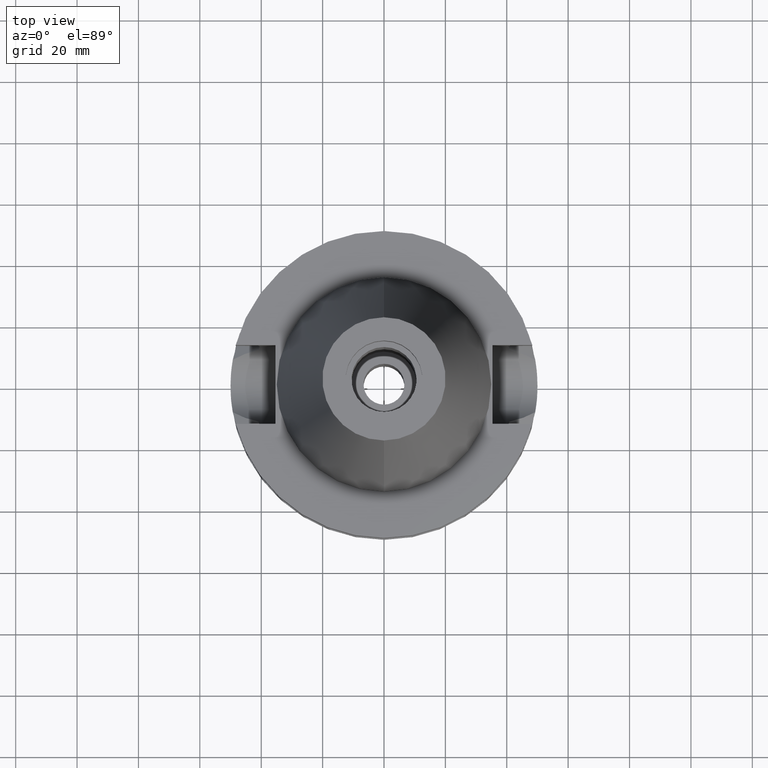
[diagram: clean part render]
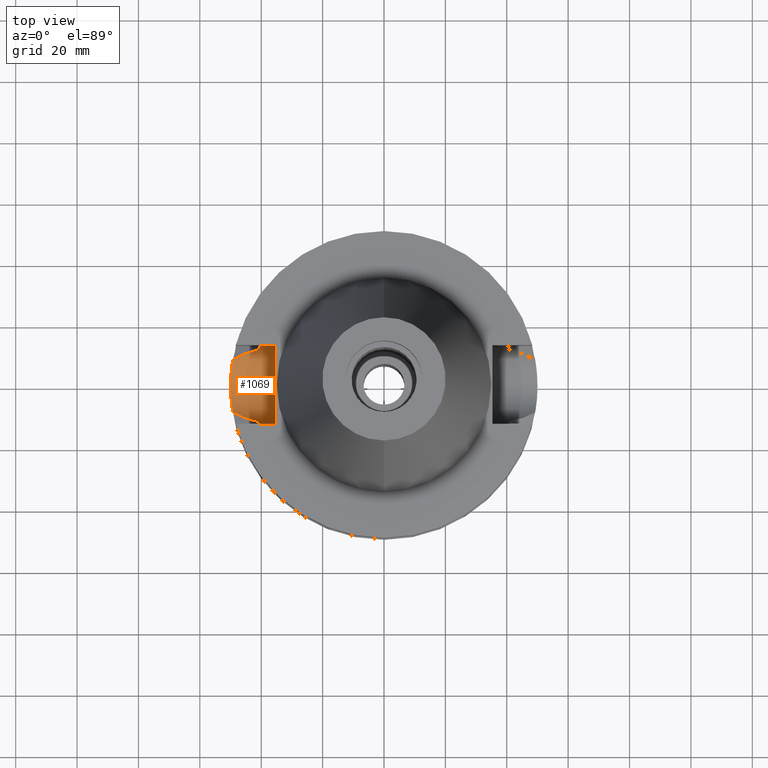
[diagram: same view with one face highlighted and labeled with its STEP entity id]
A machine part, top view. The second image highlights one B-rep face of the part: STEP entity #1069.
In plain terms, the highlighted cylindrical surface (partial cylindrical patch) has radius 12.85 mm, axis along (-1, 0, 0).
Its self-contained STEP definition (entity closure, byte-faithful):
#5 = B_SPLINE_CURVE_WITH_KNOTS ( 'NONE', 3,
 ( #2106, #2936, #953, #739, #3244, #2629, #2325, #1279, #1857, #709, #113, #2072, #1561, #2051, #187, #1544, #3173, #2647, #2091, #2969, #2681, #463, #758, #130, #3482, #1506, #1245, #3197, #1027, #997, #686, #1806, #1010, #1293, #1840, #425, #410, #972, #478, #2919, #1785, #1523, #2953, #170, #3213, #1263, #2403, #2386, #3519, #1576, #445, #2900, #1227, #2343, #3464, #153, #3501, #2364, #724, #1823, #2668, #1630 ),
 .UNSPECIFIED., .F., .F.,
 ( 4, 2, 2, 1, 1, 1, 1, 2, 2, 2, 2, 1, 1, 1, 2, 2, 2, 2, 1, 1, 1, 2, 2, 2, 2, 1, 1, 1, 1, 2, 2, 2, 2, 1, 1, 1, 1, 2, 2, 4 ),
 ( 0.0000000000000000000, 0.06250000000002720046, 0.09375000000004060641, 0.1093750000000471706, 0.1171875000000507233, 0.1210937500000529160, 0.1230468750000535960, 0.1240234375000534434, 0.1250000000000532907, 0.1875000000000558442, 0.2187500000000571210, 0.2343750000000574540, 0.2421875000000575651, 0.2460937500000575928, 0.2480468750000577038, 0.2500000000000578426, 0.3750000000000550671, 0.4375000000000537903, 0.4687500000000530687, 0.4843750000000526801, 0.4921875000000525691, 0.4960937500000524580, 0.5000000000000524025, 0.6250000000000494049, 0.6875000000000478506, 0.7187500000000470735, 0.7343750000000468514, 0.7421875000000467404, 0.7460937500000466294, 0.7480468750000465183, 0.7500000000000465183, 0.8125000000000550671, 0.8437500000000590639, 0.8593750000000615064, 0.8671875000000625056, 0.8710937500000629496, 0.8730468750000628386, 0.8740234375000623945, 0.8750000000000619504, 1.000000000000000000 ),
 .UNSPECIFIED. ) ;
#57 = CARTESIAN_POINT ( 'NONE',  ( -43.96066217039383162, -10.89329387998074417, -28.01500673712165224 ) ) ;
#62 = ORIENTED_EDGE ( 'NONE', *, *, #669, .T. ) ;
#113 = CARTESIAN_POINT ( 'NONE',  ( -49.55502993616662621, 6.655769661060365827, -32.14196323990747572 ) ) ;
#116 = CARTESIAN_POINT ( 'NONE',  ( -40.66327695313978552, -12.35977177933932225, -24.67238797837626052 ) ) ;
#130 = CARTESIAN_POINT ( 'NONE',  ( -49.79292594743412081, 4.545608915704280051, -33.16915556117016450 ) ) ;
#153 = CARTESIAN_POINT ( 'NONE',  ( -49.55886472127158981, -6.627183405197360599, -32.15923396748425489 ) ) ;
#170 = CARTESIAN_POINT ( 'NONE',  ( -49.79691665736708472, -4.501773781330188129, -33.18568231505851429 ) ) ;
#173 = CARTESIAN_POINT ( 'NONE',  ( -40.85052569294000335, 11.72538061688000077, -26.40718074535000426 ) ) ;
#183 = EDGE_CURVE ( 'NONE', #1925, #506, #2313, .T. ) ;
#187 = CARTESIAN_POINT ( 'NONE',  ( -49.64903245748666194, 5.923660221371612522, -32.55987247643395932 ) ) ;
#203 = CARTESIAN_POINT ( 'NONE',  ( -40.51083188481999997, -12.84999999999999964, -21.14999999999999858 ) ) ;
#207 = ORIENTED_EDGE ( 'NONE', *, *, #1636, .T. ) ;
#233 = CARTESIAN_POINT ( 'NONE',  ( -46.87933154419976489, 9.797331766449092427, -29.51662777444188279 ) ) ;
#265 = CARTESIAN_POINT ( 'NONE',  ( -45.33301839841863767, -10.38273113347296750, -28.72111586116416149 ) ) ;
#410 = CARTESIAN_POINT ( 'NONE',  ( -49.98153239810446280, -1.536309942625931457, -33.93135900371919433 ) ) ;
#415 = ORIENTED_EDGE ( 'NONE', *, *, #1445, .F. ) ;
#425 = CARTESIAN_POINT ( 'NONE',  ( -49.99934971134001671, -0.7780250444521822351, -33.99782700923925205 ) ) ;
#445 = CARTESIAN_POINT ( 'NONE',  ( -49.64375670555305931, -5.959977035680236845, -32.53601313160945097 ) ) ;
#458 = VERTEX_POINT ( 'NONE', #2635 ) ;
#463 = CARTESIAN_POINT ( 'NONE',  ( -49.79012209384632826, 4.576194112956198268, -33.15754248286818040 ) ) ;
#476 = CARTESIAN_POINT ( 'NONE',  ( -40.58662608485431633, 12.60878154790536598, -23.62927549513685221 ) ) ;
#478 = CARTESIAN_POINT ( 'NONE',  ( -49.90703590771476428, -3.062680104367267120, -33.63596624757198583 ) ) ;
#506 = VERTEX_POINT ( 'NONE', #1017 ) ;
#522 = CARTESIAN_POINT ( 'NONE',  ( -44.03024366512767784, 10.84224009945842404, -28.05050205276977238 ) ) ;
#528 = CARTESIAN_POINT ( 'NONE',  ( -40.59736864107516396, 12.57412283048225099, -23.79851909554432510 ) ) ;
#537 = CARTESIAN_POINT ( 'NONE',  ( -41.70827910381556336, 11.52618588157454305, -26.85145576678792523 ) ) ;
#538 = CARTESIAN_POINT ( 'NONE',  ( -45.90779893620076990, -10.16179369247718789, -29.01674352405570190 ) ) ;
#664 = CARTESIAN_POINT ( 'NONE',  ( -40.68244601107633684, -12.29666625011165415, -24.88710380518764254 ) ) ;
#669 = EDGE_CURVE ( 'NONE', #1669, #3183, #1752, .T. ) ;
#686 = CARTESIAN_POINT ( 'NONE',  ( -49.99918498204764461, 0.2914842721637553313, -33.99728988284978470 ) ) ;
#709 = CARTESIAN_POINT ( 'NONE',  ( -49.55328023547026106, 6.668788011479066746, -32.13407698025481807 ) ) ;
#724 = CARTESIAN_POINT ( 'NONE',  ( -49.55423850347899162, -6.661675813678163749, -32.13838478412101551 ) ) ;
#739 = CARTESIAN_POINT ( 'NONE',  ( -49.45264547056832782, 7.378484259212972241, -31.67235839785335827 ) ) ;
#756 = CARTESIAN_POINT ( 'NONE',  ( -40.51083188481999997, 12.84999999999999964, -21.14999999999999858 ) ) ;
#758 = CARTESIAN_POINT ( 'NONE',  ( -49.79207077461393283, 4.554957529430036622, -33.16561446378952382 ) ) ;
#815 = DIRECTION ( 'NONE',  ( 0.0000000000000000000, -1.000000000000000000, 1.133982661338924476E-14 ) ) ;
#818 = CARTESIAN_POINT ( 'NONE',  ( -45.41127577505132962, 10.35317772131971736, -28.76145609637714529 ) ) ;
#835 = CARTESIAN_POINT ( 'NONE',  ( -40.85052569294000335, 11.72538061688000077, -26.40718074535000426 ) ) ;
#850 = CARTESIAN_POINT ( 'NONE',  ( -40.51083188481999997, 12.84999999999999964, -21.14999999999999858 ) ) ;
#852 = CARTESIAN_POINT ( 'NONE',  ( -45.12853649560214109, 10.45879550311683381, -28.61599840262626060 ) ) ;
#953 = CARTESIAN_POINT ( 'NONE',  ( -49.37893249968452380, 7.861649082284807299, -31.32227597798662444 ) ) ;
#970 = LINE ( 'NONE', #1762, #2643 ) ;
#972 = CARTESIAN_POINT ( 'NONE',  ( -49.92889851897205489, -2.680302569563122628, -33.72333287919454392 ) ) ;
#975 = CARTESIAN_POINT ( 'NONE',  ( -40.63719938804874943, -12.44499676301189162, -24.35261212848416079 ) ) ;
#997 = CARTESIAN_POINT ( 'NONE',  ( -49.99656748919156257, 0.6198751107744853162, -33.98745238095582977 ) ) ;
#1010 = CARTESIAN_POINT ( 'NONE',  ( -49.99987979864300769, 0.05796992310210238170, -33.99989036820486632 ) ) ;
#1017 = CARTESIAN_POINT ( 'NONE',  ( -40.85052569294000335, -11.72538061688000077, -26.40718074535000426 ) ) ;
#1027 = CARTESIAN_POINT ( 'NONE',  ( -49.99187212320673979, 0.9033269217188442113, -33.96962286853197810 ) ) ;
#1042 = CARTESIAN_POINT ( 'NONE',  ( -40.57496101843508995, 12.64633755876300647, -23.43369807928905146 ) ) ;
#1054 = CARTESIAN_POINT ( 'NONE',  ( -43.66119926238382476, 10.96116163400731480, -27.86025128949973251 ) ) ;
#1063 = CARTESIAN_POINT ( 'NONE',  ( -35.39999999999999858, 1.497743035356999952E-14, -21.14999999999999858 ) ) ;
#1064 = CARTESIAN_POINT ( 'NONE',  ( -35.39999999999999858, 1.497743035356999952E-14, -21.14999999999999858 ) ) ;
#1069 = ADVANCED_FACE ( 'NONE', ( #2721 ), #1330, .F. ) ;
#1088 = CARTESIAN_POINT ( 'NONE',  ( -45.40182280251446656, 10.35675051129136470, -28.75659340072050796 ) ) ;
#1189 = ORIENTED_EDGE ( 'NONE', *, *, #2063, .T. ) ;
#1212 = CARTESIAN_POINT ( 'NONE',  ( -42.49430284854111051, -11.34364881463865693, -27.25857827030939973 ) ) ;
#1227 = CARTESIAN_POINT ( 'NONE',  ( -49.59445580804545273, -6.356262091154828653, -32.31864549455592339 ) ) ;
#1230 = CARTESIAN_POINT ( 'NONE',  ( -40.60613670648186968, -12.54578755583301231, -23.92964714799551729 ) ) ;
#1245 = CARTESIAN_POINT ( 'NONE',  ( -49.96641370053900744, 1.854335668373697787, -33.87145058406015607 ) ) ;
#1263 = CARTESIAN_POINT ( 'NONE',  ( -49.79153138711314597, -4.560858291787058150, -33.16337717899408233 ) ) ;
#1279 = CARTESIAN_POINT ( 'NONE',  ( -49.54081522937529769, 6.760831090909845464, -32.07779346214266525 ) ) ;
#1293 = CARTESIAN_POINT ( 'NONE',  ( -49.99991319832173531, 0.01136593543690614383, -34.00001610124986229 ) ) ;
#1323 = CARTESIAN_POINT ( 'NONE',  ( -40.54025313608427439, 12.75731810731626759, -22.70684014861360467 ) ) ;
#1330 = CYLINDRICAL_SURFACE ( 'NONE', #1469, 12.85000000000000320 ) ;
#1358 = ORIENTED_EDGE ( 'NONE', *, *, #1805, .T. ) ;
#1383 = CARTESIAN_POINT ( 'NONE',  ( -48.15927974300257830, 9.189153146266678007, -30.17230613848506948 ) ) ;
#1445 = EDGE_CURVE ( 'NONE', #1642, #1579, #970, .T. ) ;
#1469 = AXIS2_PLACEMENT_3D ( 'NONE', #1063, #1897, #2752 ) ;
#1490 = CARTESIAN_POINT ( 'NONE',  ( -40.74530522851353709, -12.08734613714425876, -25.53455770065779618 ) ) ;
#1506 = CARTESIAN_POINT ( 'NONE',  ( -49.91494156087190248, 3.003678809712104769, -33.66822178038223257 ) ) ;
#1523 = CARTESIAN_POINT ( 'NONE',  ( -49.81887950449394964, -4.253215501433965429, -33.27643327980759835 ) ) ;
#1526 = CARTESIAN_POINT ( 'NONE',  ( -40.51083188482000708, -12.84999999999998543, -22.03308001794205140 ) ) ;
#1544 = CARTESIAN_POINT ( 'NONE',  ( -49.70819606445564887, 5.395925769115646808, -32.81381563558341696 ) ) ;
#1561 = CARTESIAN_POINT ( 'NONE',  ( -49.55660296224501593, 6.644051108357952096, -32.14905121250929199 ) ) ;
#1574 = CARTESIAN_POINT ( 'NONE',  ( -40.85052569294000335, 11.72538061688000077, -26.40718074535000426 ) ) ;
#1576 = CARTESIAN_POINT ( 'NONE',  ( -49.66444571838366073, -5.784797251189780276, -32.62588835529720654 ) ) ;
#1579 = VERTEX_POINT ( 'NONE', #203 ) ;
#1630 = CARTESIAN_POINT ( 'NONE',  ( -49.26250064874000145, -8.556052234130000045, -30.73730776426999967 ) ) ;
#1636 = EDGE_CURVE ( 'NONE', #2802, #1669, #3580, .T. ) ;
#1641 = CARTESIAN_POINT ( 'NONE',  ( -45.58130776639562498, -10.28866937313324925, -28.84884086776562029 ) ) ;
#1642 = VERTEX_POINT ( 'NONE', #2784 ) ;
#1658 = DIRECTION ( 'NONE',  ( 1.000000000000000000, 3.301887120261000215E-14, -2.711023109266999928E-14 ) ) ;
#1669 = VERTEX_POINT ( 'NONE', #173 ) ;
#1752 = B_SPLINE_CURVE_WITH_KNOTS ( 'NONE', 3,
 ( #835, #537, #1932, #1054, #522, #2151, #2462, #852, #3063, #3045, #3579, #1088, #818, #233, #1383, #2183 ),
 .UNSPECIFIED., .F., .F.,
 ( 4, 2, 2, 1, 1, 1, 1, 2, 2, 4 ),
 ( 0.0000000000000000000, 0.2500000000000300870, 0.3750000000000449085, 0.4375000000000516254, 0.4687500000000549560, 0.4843750000000566769, 0.4921875000000576206, 0.4960937500000583422, 0.5000000000000589528, 1.000000000000000000 ),
 .UNSPECIFIED. ) ;
#1762 = CARTESIAN_POINT ( 'NONE',  ( -35.39999999999999858, -12.84999999999999964, -21.14999999999999858 ) ) ;
#1785 = CARTESIAN_POINT ( 'NONE',  ( -49.84651032207628418, -3.920896850677401790, -33.39006912583155895 ) ) ;
#1805 = EDGE_CURVE ( 'NONE', #506, #1579, #3017, .T. ) ;
#1806 = CARTESIAN_POINT ( 'NONE',  ( -49.99977861994413075, 0.1279244559188337238, -33.99951148631681974 ) ) ;
#1808 = CARTESIAN_POINT ( 'NONE',  ( -40.54025086427707691, -12.75862911298345992, -22.93149008171479508 ) ) ;
#1823 = CARTESIAN_POINT ( 'NONE',  ( -49.48034313870795131, -7.211008702630595124, -31.80506207658703133 ) ) ;
#1840 = CARTESIAN_POINT ( 'NONE',  ( -49.99991212798489215, -0.01359305582972668118, -34.00001368996088047 ) ) ;
#1857 = CARTESIAN_POINT ( 'NONE',  ( -49.54916658605198876, 6.699295304958331698, -32.11552208887468396 ) ) ;
#1897 = DIRECTION ( 'NONE',  ( -1.000000000000000000, 0.0000000000000000000, 0.0000000000000000000 ) ) ;
#1903 = CARTESIAN_POINT ( 'NONE',  ( -47.06462751591663363, -9.674082654875713061, -29.61098375368405655 ) ) ;
#1907 = CARTESIAN_POINT ( 'NONE',  ( -40.51818719763605969, 12.82722225432310204, -22.03686830847411215 ) ) ;
#1925 = VERTEX_POINT ( 'NONE', #2924 ) ;
#1932 = CARTESIAN_POINT ( 'NONE',  ( -42.51816667253595483, 11.30805433701450191, -27.27033937387406581 ) ) ;
#2046 = CARTESIAN_POINT ( 'NONE',  ( -40.51083188481999997, 12.84999999999999964, -21.14999999999999858 ) ) ;
#2051 = CARTESIAN_POINT ( 'NONE',  ( -49.60532501420080820, 6.280351741611434946, -32.36849389463339577 ) ) ;
#2063 = EDGE_CURVE ( 'NONE', #1642, #458, #3095, .T. ) ;
#2072 = CARTESIAN_POINT ( 'NONE',  ( -49.55619344953943539, 6.647103290262482034, -32.14720616780237350 ) ) ;
#2086 = ORIENTED_EDGE ( 'NONE', *, *, #183, .T. ) ;
#2091 = CARTESIAN_POINT ( 'NONE',  ( -49.76602569650313512, 4.832263762408488539, -33.05741896660509127 ) ) ;
#2093 = CARTESIAN_POINT ( 'NONE',  ( -40.62482961095668088, -12.48525133053583147, -24.19329755006814153 ) ) ;
#2106 = CARTESIAN_POINT ( 'NONE',  ( -49.26250064874000145, 8.556052234130000045, -30.73730776426999967 ) ) ;
#2139 = CARTESIAN_POINT ( 'NONE',  ( -40.73816957792652715, 12.11682261037110386, -25.53412604446968004 ) ) ;
#2151 = CARTESIAN_POINT ( 'NONE',  ( -44.56586057843524884, 10.65993192594588201, -28.32638495851818305 ) ) ;
#2183 = CARTESIAN_POINT ( 'NONE',  ( -49.26250064874000145, 8.556052234130000045, -30.73730776426999967 ) ) ;
#2238 = CARTESIAN_POINT ( 'NONE',  ( -49.26250064874000145, 8.556052234130000045, -30.73730776426999967 ) ) ;
#2313 = B_SPLINE_CURVE_WITH_KNOTS ( 'NONE', 3,
 ( #3034, #2450, #3565, #1903, #3018, #2467, #538, #1641, #2762, #265, #2488, #3322, #3140, #57, #1212, #2810 ),
 .UNSPECIFIED., .F., .F.,
 ( 4, 2, 2, 1, 1, 1, 1, 2, 2, 4 ),
 ( 0.0000000000000000000, 0.2500000000000850986, 0.3750000000001263989, 0.4375000000001463829, 0.4687500000001563194, 0.4843750000001605938, 0.4921875000001618150, 0.4960937500001622036, 0.5000000000001625367, 1.000000000000000000 ),
 .UNSPECIFIED. ) ;
#2325 = CARTESIAN_POINT ( 'NONE',  ( -49.52361628466106680, 6.885959951817238966, -31.99982566609221735 ) ) ;
#2327 = CARTESIAN_POINT ( 'NONE',  ( -40.60257095199571609, -12.55731571366193577, -23.87709474182198122 ) ) ;
#2343 = CARTESIAN_POINT ( 'NONE',  ( -49.57428995783958214, -6.510997233130885853, -32.22853959653737377 ) ) ;
#2364 = CARTESIAN_POINT ( 'NONE',  ( -49.55515418396014837, -6.654861456614353798, -32.14251385466472755 ) ) ;
#2374 = EDGE_CURVE ( 'NONE', #3183, #1925, #5, .T. ) ;
#2386 = CARTESIAN_POINT ( 'NONE',  ( -49.75846009006085069, -4.919875096834507744, -33.02628834694850468 ) ) ;
#2403 = CARTESIAN_POINT ( 'NONE',  ( -49.79032517722875184, -4.573999506065040244, -33.15837850808291876 ) ) ;
#2436 = CARTESIAN_POINT ( 'NONE',  ( -40.59188398425018818, 12.59182459259148956, -23.71305796896682949 ) ) ;
#2450 = CARTESIAN_POINT ( 'NONE',  ( -48.68900678024483852, -8.885160837272518819, -30.44359961716329721 ) ) ;
#2462 = CARTESIAN_POINT ( 'NONE',  ( -44.82918161238701771, 10.56779550451214789, -28.46195431508266793 ) ) ;
#2467 = CARTESIAN_POINT ( 'NONE',  ( -46.18094616134364827, -10.05098827636889069, -29.15713337253758297 ) ) ;
#2488 = CARTESIAN_POINT ( 'NONE',  ( -45.29730413223457930, -10.39608865765504220, -28.70274109197124801 ) ) ;
#2590 = VECTOR ( 'NONE', #1658, 1000.000000000000000 ) ;
#2629 = CARTESIAN_POINT ( 'NONE',  ( -49.50802364971607261, 6.996643989419142784, -31.92857083851467692 ) ) ;
#2635 = CARTESIAN_POINT ( 'NONE',  ( -35.39999999999999858, 12.84999999999999964, -21.14999999999999858 ) ) ;
#2643 = VECTOR ( 'NONE', #2951, 1000.000000000000000 ) ;
#2647 = CARTESIAN_POINT ( 'NONE',  ( -49.75323403162330749, 4.961523140866395565, -33.00388751784748109 ) ) ;
#2650 = CARTESIAN_POINT ( 'NONE',  ( -40.51083188481999997, -12.84999999999999964, -21.14999999999999858 ) ) ;
#2668 = CARTESIAN_POINT ( 'NONE',  ( -49.38328813122329564, -7.860603764257675152, -31.35795055374553897 ) ) ;
#2681 = CARTESIAN_POINT ( 'NONE',  ( -49.78718657746458831, 4.608071001466599981, -33.14537780191106719 ) ) ;
#2706 = AXIS2_PLACEMENT_3D ( 'NONE', #1064, #2792, #815 ) ;
#2721 = FACE_OUTER_BOUND ( 'NONE', #3316, .T. ) ;
#2752 = DIRECTION ( 'NONE',  ( 0.0000000000000000000, 0.0000000000000000000, -1.000000000000000000 ) ) ;
#2756 = LINE ( 'NONE', #850, #2590 ) ;
#2762 = CARTESIAN_POINT ( 'NONE',  ( -45.41610732970841013, -10.35148326404035934, -28.76386200967234075 ) ) ;
#2784 = CARTESIAN_POINT ( 'NONE',  ( -35.39999999999999858, -12.84999999999999964, -21.14999999999999858 ) ) ;
#2792 = DIRECTION ( 'NONE',  ( 1.000000000000000000, 0.0000000000000000000, 0.0000000000000000000 ) ) ;
#2802 = VERTEX_POINT ( 'NONE', #2046 ) ;
#2810 = CARTESIAN_POINT ( 'NONE',  ( -40.85052569294000335, -11.72538061688000077, -26.40718074535000426 ) ) ;
#2900 = CARTESIAN_POINT ( 'NONE',  ( -49.61115140422787562, -6.223964729839866372, -32.39254390102453129 ) ) ;
#2919 = CARTESIAN_POINT ( 'NONE',  ( -49.86776501350904311, -3.635030136202483941, -33.47672996168076764 ) ) ;
#2924 = CARTESIAN_POINT ( 'NONE',  ( -49.26250064874000145, -8.556052234130000045, -30.73730776426999967 ) ) ;
#2936 = CARTESIAN_POINT ( 'NONE',  ( -49.32374122250661941, 8.203452258994566648, -31.05198044185512174 ) ) ;
#2951 = DIRECTION ( 'NONE',  ( -1.000000000000000000, 3.440913946376999995E-14, 0.0000000000000000000 ) ) ;
#2953 = CARTESIAN_POINT ( 'NONE',  ( -49.80435567630843252, -4.418991949924194529, -33.21646025973881677 ) ) ;
#2968 = CARTESIAN_POINT ( 'NONE',  ( -40.51083188482000708, 12.85000000000002451, -21.59154171183185866 ) ) ;
#2969 = CARTESIAN_POINT ( 'NONE',  ( -49.78024957262775274, 4.682602904389986165, -33.11659475797488028 ) ) ;
#3017 = B_SPLINE_CURVE_WITH_KNOTS ( 'NONE', 3,
 ( #3153, #3466, #1490, #664, #116, #975, #2093, #3200, #1230, #2327, #3446, #1808, #1526, #2650 ),
 .UNSPECIFIED., .F., .F.,
 ( 4, 2, 2, 1, 1, 2, 2, 4 ),
 ( 0.0000000000000000000, 0.2499999999999908407, 0.3749999999999861222, 0.4374999999999826250, 0.4687499999999819034, 0.4843749999999814593, 0.4999999999999810707, 1.000000000000000000 ),
 .UNSPECIFIED. ) ;
#3018 = CARTESIAN_POINT ( 'NONE',  ( -46.71830414632832174, -9.826858825707326162, -29.43320869765202019 ) ) ;
#3023 = CARTESIAN_POINT ( 'NONE',  ( -40.59544671389546977, 12.58032818125508001, -23.76890350620164227 ) ) ;
#3034 = CARTESIAN_POINT ( 'NONE',  ( -49.26250064874000145, -8.556052234130000045, -30.73730776426999967 ) ) ;
#3045 = CARTESIAN_POINT ( 'NONE',  ( -45.34961697500722977, 10.37643418867855338, -28.72973774911503142 ) ) ;
#3063 = CARTESIAN_POINT ( 'NONE',  ( -45.27625068977756939, 10.40394435446109611, -28.69199511609429720 ) ) ;
#3095 = CIRCLE ( 'NONE', #2706, 12.84999999999999964 ) ;
#3140 = CARTESIAN_POINT ( 'NONE',  ( -45.25967351387394899, -10.41012628576243593, -28.68337982500771588 ) ) ;
#3153 = CARTESIAN_POINT ( 'NONE',  ( -40.85052569294000335, -11.72538061688000077, -26.40718074535000426 ) ) ;
#3173 = CARTESIAN_POINT ( 'NONE',  ( -49.72685100711870376, 5.221220373881325649, -32.89294692400078191 ) ) ;
#3183 = VERTEX_POINT ( 'NONE', #2238 ) ;
#3197 = CARTESIAN_POINT ( 'NONE',  ( -49.97921232366432776, 1.472283130303088328, -33.92105330267580143 ) ) ;
#3200 = CARTESIAN_POINT ( 'NONE',  ( -40.61156896389279325, -12.52821669071489552, -24.00856318994577876 ) ) ;
#3202 = ORIENTED_EDGE ( 'NONE', *, *, #3528, .F. ) ;
#3213 = CARTESIAN_POINT ( 'NONE',  ( -49.79369055535326538, -4.537227758188342897, -33.17232190023474914 ) ) ;
#3244 = CARTESIAN_POINT ( 'NONE',  ( -49.47570413671572709, 7.222306617454652411, -31.77982844949464436 ) ) ;
#3259 = CARTESIAN_POINT ( 'NONE',  ( -40.54944727710435615, 12.72806419699667480, -22.93049076237651462 ) ) ;
#3295 = CARTESIAN_POINT ( 'NONE',  ( -40.56599673094051184, 12.67509433839780897, -23.26596311455570998 ) ) ;
#3316 = EDGE_LOOP ( 'NONE', ( #1358, #415, #1189, #3202, #207, #62, #3440, #2086 ) ) ;
#3322 = CARTESIAN_POINT ( 'NONE',  ( -45.27347134940013973, -10.40498598794454388, -28.69047902794329019 ) ) ;
#3440 = ORIENTED_EDGE ( 'NONE', *, *, #2374, .T. ) ;
#3446 = CARTESIAN_POINT ( 'NONE',  ( -40.60092750940732031, -12.56262654778352506, -23.85254111937892674 ) ) ;
#3464 = CARTESIAN_POINT ( 'NONE',  ( -49.56403511907173964, -6.588443188324652589, -32.18250114693528730 ) ) ;
#3466 = CARTESIAN_POINT ( 'NONE',  ( -40.79434743164174648, -11.92110232362476019, -25.97065181136010992 ) ) ;
#3482 = CARTESIAN_POINT ( 'NONE',  ( -49.86319177403894543, 3.774326659621140223, -33.45998250845735100 ) ) ;
#3501 = CARTESIAN_POINT ( 'NONE',  ( -49.55663962683947688, -6.643789794552216854, -32.14920901781265883 ) ) ;
#3519 = CARTESIAN_POINT ( 'NONE',  ( -49.72336919271683797, -5.262903667659942997, -32.87919076950355901 ) ) ;
#3528 = EDGE_CURVE ( 'NONE', #2802, #458, #2756, .T. ) ;
#3551 = CARTESIAN_POINT ( 'NONE',  ( -40.65435955981745053, 12.39001970624488891, -24.66361747048510011 ) ) ;
#3565 = CARTESIAN_POINT ( 'NONE',  ( -48.06785176347707278, -9.207397541580217393, -30.12556770823965024 ) ) ;
#3579 = CARTESIAN_POINT ( 'NONE',  ( -45.38095449470748122, 10.36462633116388865, -28.74585843288055287 ) ) ;
#3580 = B_SPLINE_CURVE_WITH_KNOTS ( 'NONE', 3,
 ( #756, #2968, #1907, #1323, #3259, #3295, #1042, #476, #2436, #3023, #528, #3551, #2139, #1574 ),
 .UNSPECIFIED., .F., .F.,
 ( 4, 2, 2, 1, 1, 2, 2, 4 ),
 ( 0.0000000000000000000, 0.2499999999999877875, 0.3749999999999826250, 0.4374999999999801270, 0.4687499999999798495, 0.4843749999999797939, 0.4999999999999796829, 1.000000000000000000 ),
 .UNSPECIFIED. ) ;